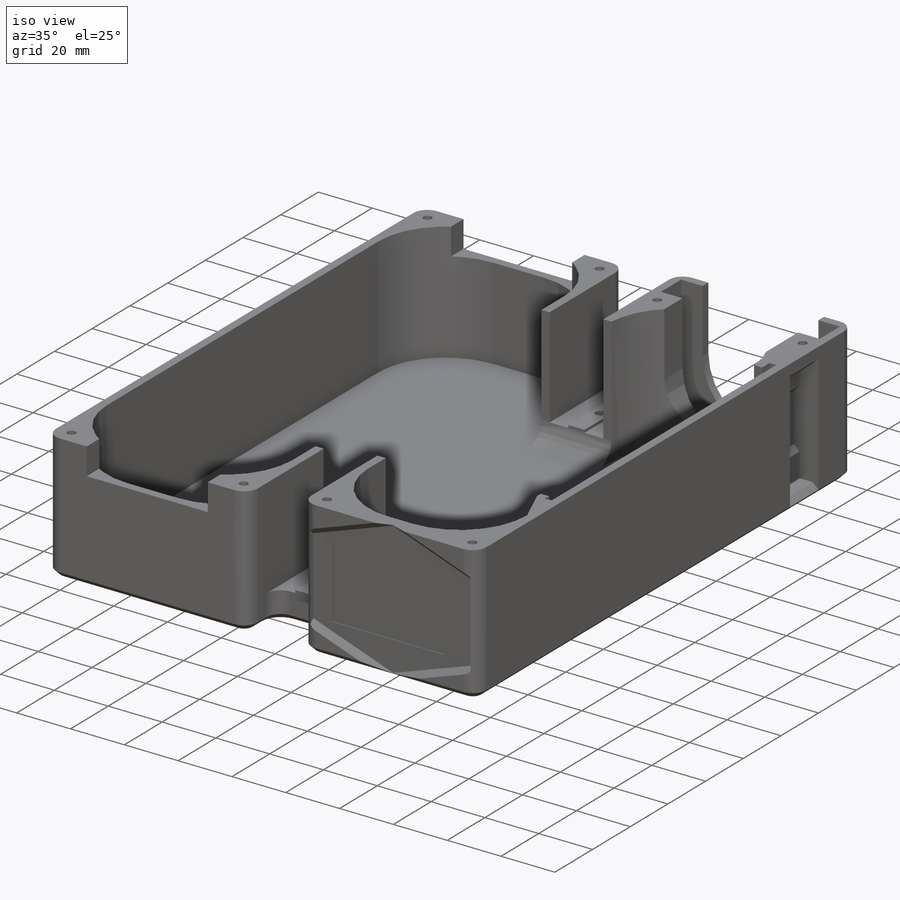
[diagram: iso view]
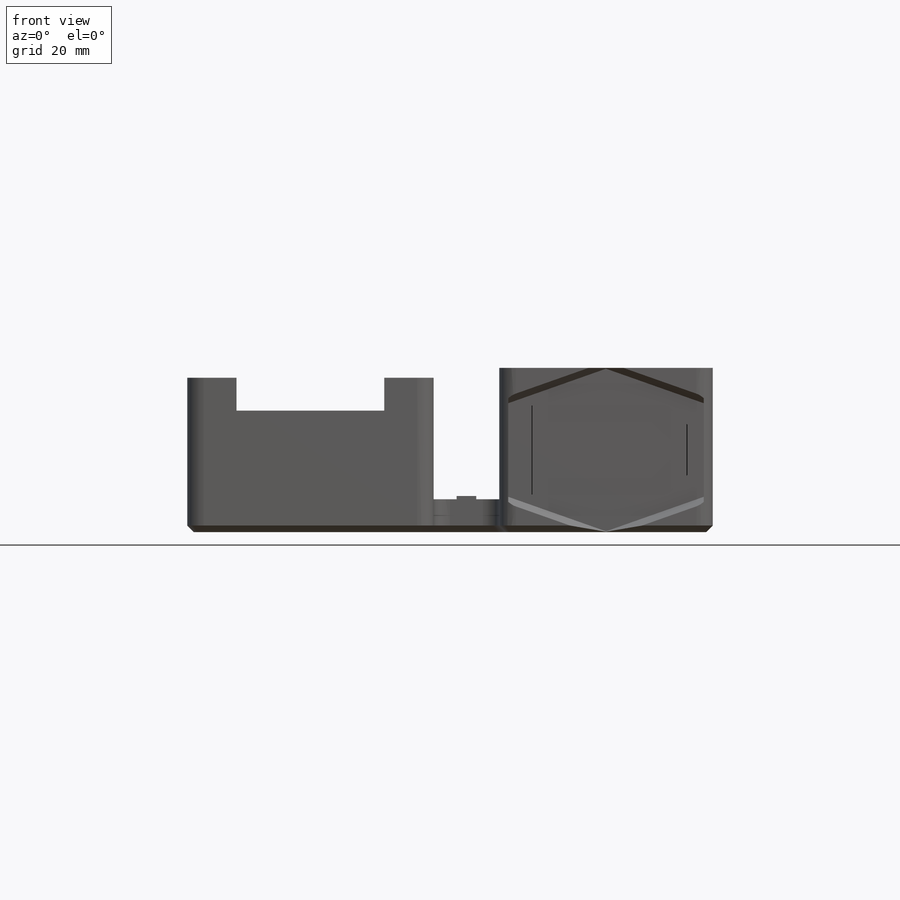
[diagram: front view]
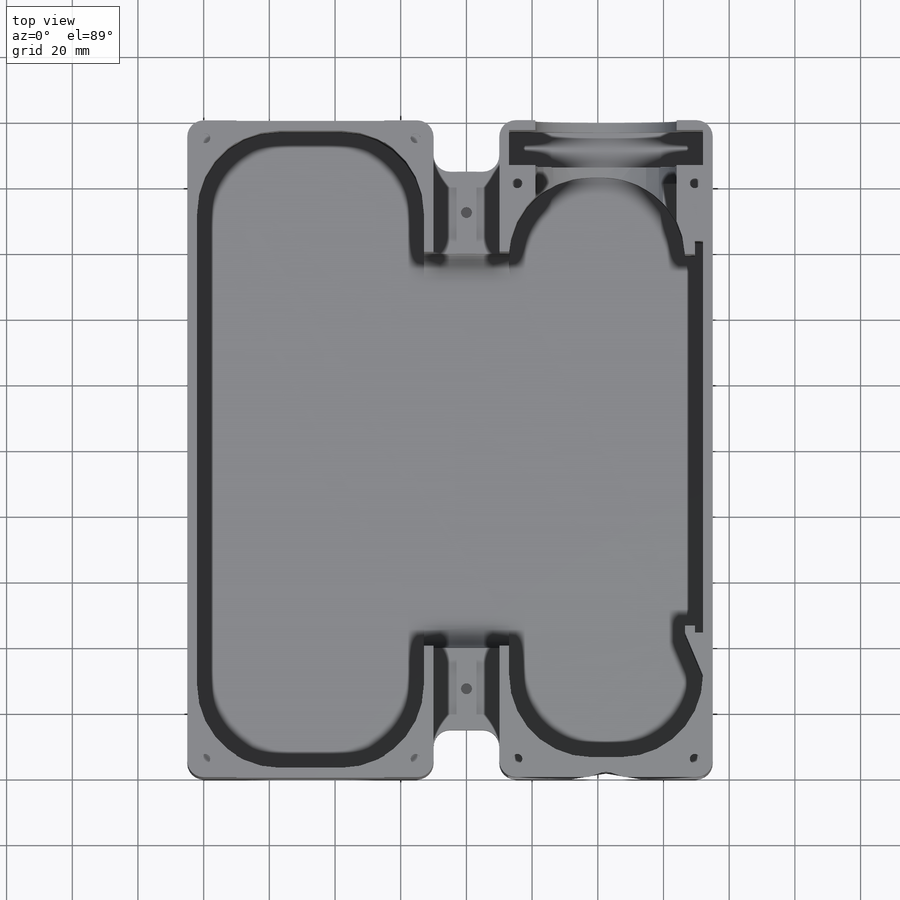
[diagram: top view]
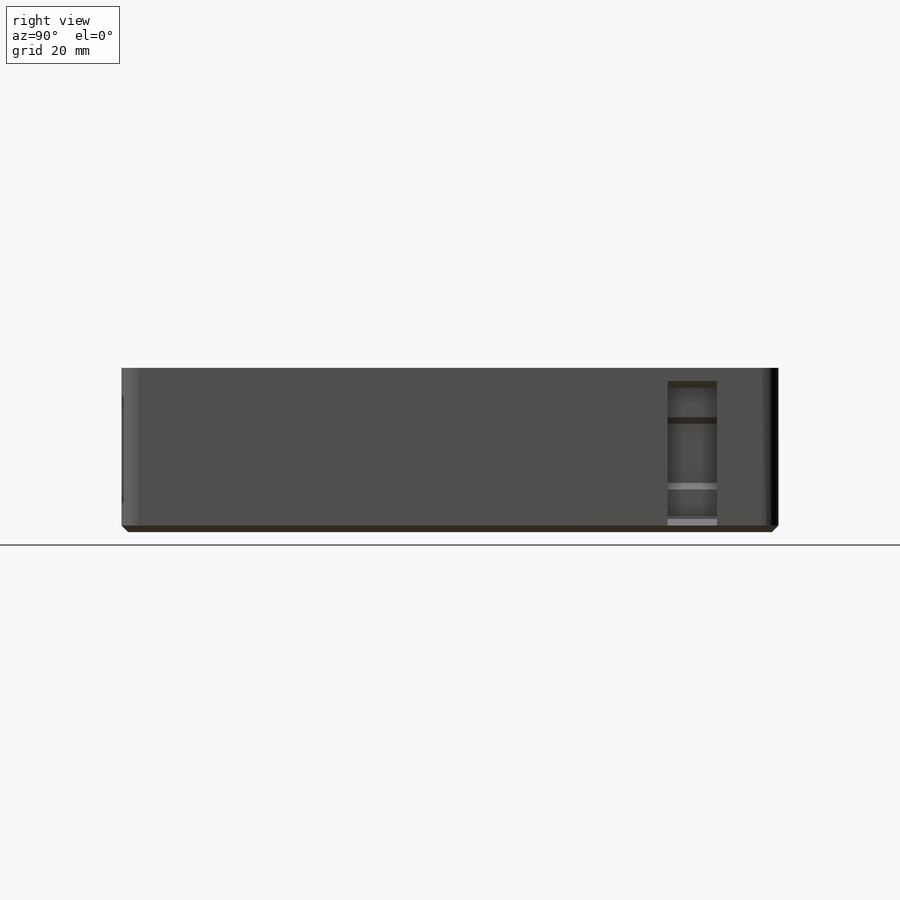
[diagram: right view]
SOLIDWORKS PART (.sldprt)
format: sldprt  version: not decoded by parser v0  size: 891,392 bytes
history: native  units: mm
features: sketch x19, extrude x10, cut_extrude x9, fillet x5, chamfer x4, material x1 (+13 scaffold rows collapsed)
feature tree (61):
  scaffold x13  (default folders/planes/origin — collapsed)
  material  "Material <not specified>"
  sketch  "base"  dims[D1=20.0mm D2=75.0mm D3=200.0mm D4=200.0mm D5=65.0mm D6=20.0mm D7=30.0mm D8=15.0mm]
  extrude  "boss-base"  Depth=3mm
  sketch  "mount points"  dims[D1=25.0mm]
  extrude  "Boss-2040rest"  Depth=7mm
  sketch  "Sketch5"  dims[D1=6.0mm]
  extrude  "Boss-2040rail"  Depth=1mm
  sketch  "Sketch6"  dims[D1=3.3mm]
  cut_extrude  "Cut-Extrude1"  [1 undecoded]
  sketch  "Sketch7"  dims[D1=6.0mm]
  cut_extrude  "Cut-Extrude2"  Depth=2mm
  sketch  "Sketch9"  dims[D1=3.0mm]
  extrude  "Boss-Extrude4"  Depth=44mm
  sketch  "Sketch10"  dims[D2=6.0mm D1=3.0mm]
  extrude  "Boss-Extrude5"  Depth=47mm
  fillet  "Fillet2"  Radius=25mm
  sketch  "Sketch14"  dims[D1=3.0mm D2=10.75mm]
  extrude  "Boss-Extrude6"  [1 undecoded]
  sketch  "Sketch11"  dims[D1=59.5mm D2=49.5mm D3=28.5mm]
  cut_extrude  "Cut-Extrude4"  Depth=2mm
  sketch  "Sketch12"  dims[D1=27.1mm D2=47.4mm D3=5.0mm D4=7.1mm D5=41.25mm D6=15.4mm]
  chamfer  "Chamfer1"  Distance=2mm Angle=45deg
  cut_extrude  "Cut-Extrude5"  [1 undecoded]
  sketch  "Sketch15"  dims[D1=2.0mm]
  cut_extrude  "Cut-Extrude6"  [1 undecoded]
  sketch  "Sketch17"  dims[c1.D1=3.0mm c1.D2=3.0mm c1.D3=4.0mm c1.D4=3.0mm c1.D5=3.0mm c1.D6=2.0mm c1.D7=119.25mm c1.D8=2.5mm c2.D1=20.0mm]
  extrude  "Boss-Extrude7"  [1 undecoded]
  sketch  "Sketch20"  dims[D1=10.0mm D2=45.0mm]
  cut_extrude  "Cut-Extrude10"  [1 undecoded]
  fillet  "Fillet3"  Radius=25mm
  fillet  "Fillet4"  Radius=25mm
  fillet  "Fillet7"  Radius=7mm
  sketch  "Sketch23"  dims[D1=15.0mm D2=40.0mm D3=3.0mm D4=4.0mm]
  cut_extrude  "Cut-Extrude11"  Depth=7mm
  sketch  "Sketch24"  dims[D1=18.0mm D2=18.0mm]
  cut_extrude  "Cut-Extrude12"  [1 undecoded]
  chamfer  "Chamfer6"  Distance=2mm Angle=45deg
  sketch  "Sketch19"  dims[D1=3.0mm D2=5.5mm D3=5.5mm D4=5.5mm D5=5.5mm D6=5.5mm D7=5.5mm]
  cut_extrude  "screwholes"  Depth=5mm
  fillet  "Fillet5"  Radius=5mm
  sketch  "Sketch25"
  extrude  "print-enabler-screwholes"  Depth=0.8mm
  chamfer  "Chamfer9"  Distance=2mm Angle=45deg
  sketch  "Sketch26"
  extrude  "print-enabler-usbhole"  [1 undecoded]
  chamfer  "Chamfer10"  Distance=2mm Angle=45deg
  sketch  "Sketch27"  dims[c1.D2=0.4mm c1.D3=0.4mm c1.D4=0.4mm c1.D1=0.2mm c2.D2=0.4mm c2.D1=0.2mm c3.D2=0.4mm]
  extrude  "Boss-Extrude11"  [1 undecoded]
decode coverage: 36 of 47 modeling features carry decoded parameters
note: 9 parameter values undecoded
summary: no parameter record found for 9 features
note: suppression state not decoded; provenance and decode notes live in map.json
